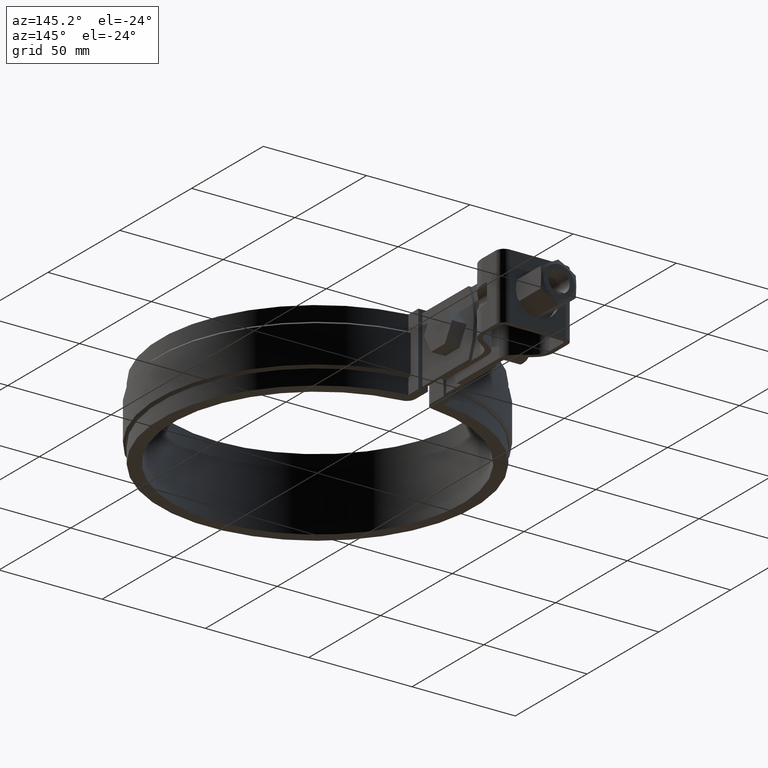
[diagram: clean part render]
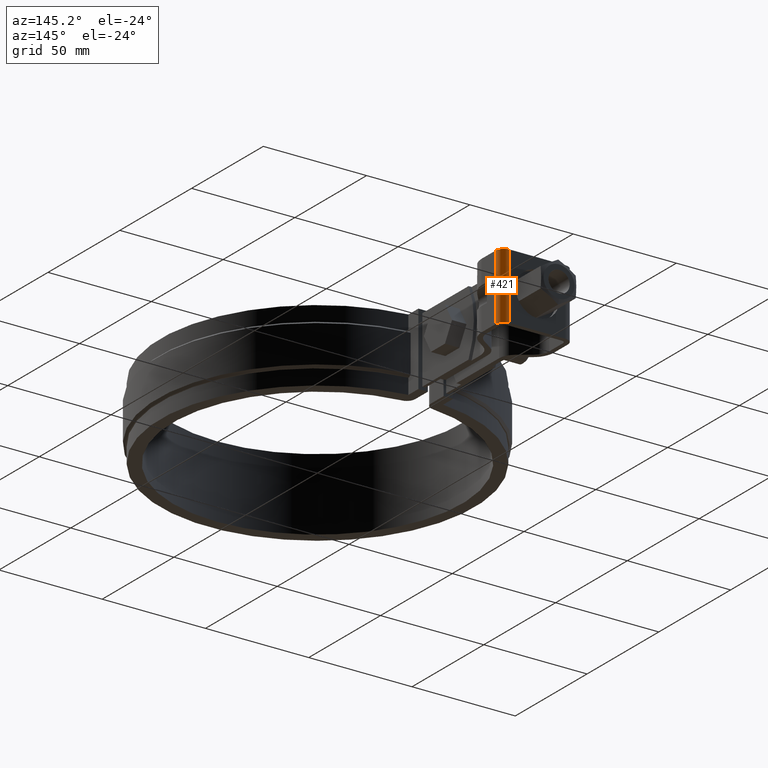
[diagram: same view with one face highlighted and labeled with its STEP entity id]
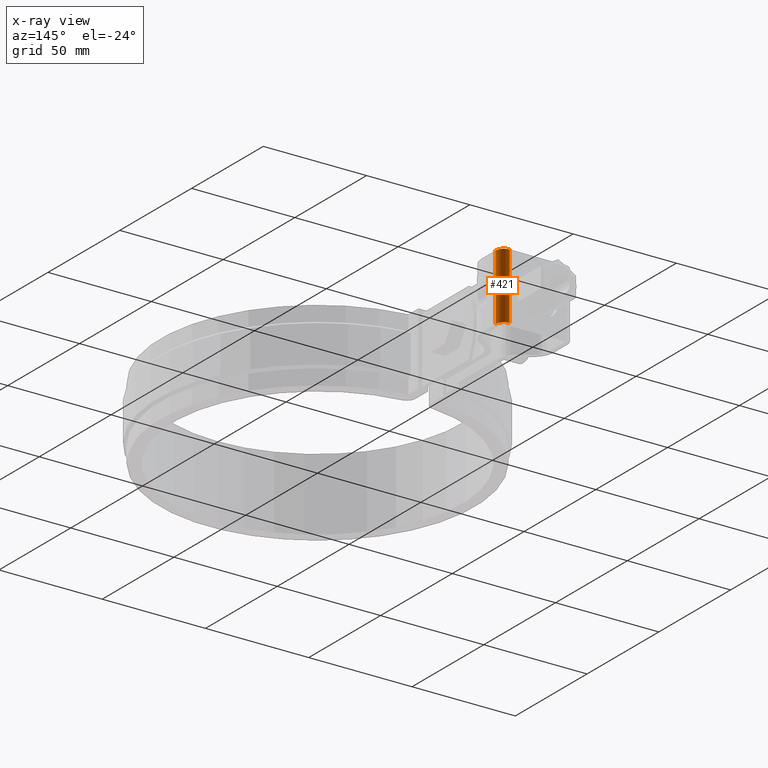
[diagram: x-ray of the same camera — body ghosted, the highlighted face saturated]
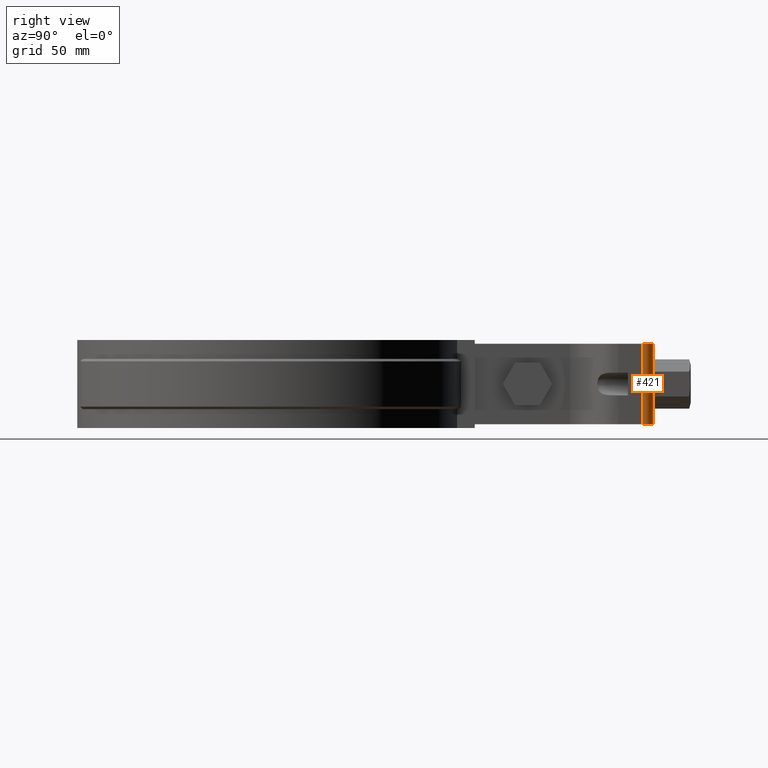
[diagram: same view with one face highlighted and labeled with its STEP entity id]
A machine part, auxiliary view. The second image highlights one B-rep face of the part: STEP entity #421.
The next image is the same camera in x-ray: the body ghosted, the highlighted face saturated — about 0% of this face is hidden behind the body in this view.
A second angle (right view) of the same face is appended — the face is thin or edge-on in the first view.
In plain terms, the highlighted cylindrical surface (edge-blend (fillet) strip) has radius 4 mm, axis along (0, 0, 1).
Its self-contained STEP definition (entity closure, byte-faithful):
#421 = ADVANCED_FACE( '', ( #716 ), #717, .T. );
#716 = FACE_OUTER_BOUND( '', #1843, .T. );
#717 = CYLINDRICAL_SURFACE( '', #1844, 4.00000000000000 );
#1843 = EDGE_LOOP( '', ( #4455, #4456, #4457, #4458 ) );
#1844 = AXIS2_PLACEMENT_3D( '', #4459, #4460, #4461 );
#4455 = ORIENTED_EDGE( '', *, *, #5331, .F. );
#4456 = ORIENTED_EDGE( '', *, *, #5332, .F. );
#4457 = ORIENTED_EDGE( '', *, *, #5240, .T. );
#4458 = ORIENTED_EDGE( '', *, *, #5333, .T. );
#4459 = CARTESIAN_POINT( '', ( 13.5000000000000, 149.297141712794, -32.0000000000000 ) );
#4460 = DIRECTION( '', ( 0.000000000000000, 0.000000000000000, 1.00000000000000 ) );
#4461 = DIRECTION( '', ( 0.000000000000000, 1.00000000000000, 0.000000000000000 ) );
#5240 = EDGE_CURVE( '', #5923, #5921, #5924, .T. );
#5331 = EDGE_CURVE( '', #6078, #6079, #6080, .T. );
#5332 = EDGE_CURVE( '', #5923, #6078, #6081, .T. );
#5333 = EDGE_CURVE( '', #5921, #6079, #6082, .T. );
#5921 = VERTEX_POINT( '', #8682 );
#5923 = VERTEX_POINT( '', #8685 );
#5924 = CIRCLE( '', #8686, 4.00000000000000 );
#6078 = VERTEX_POINT( '', #9000 );
#6079 = VERTEX_POINT( '', #9001 );
#6080 = CIRCLE( '', #9002, 4.00000000000000 );
#6081 = LINE( '', #9003, #9004 );
#6082 = LINE( '', #9005, #9006 );
#8682 = CARTESIAN_POINT( '', ( 13.5000000000000, 153.297141712794, -32.0000000000000 ) );
#8685 = CARTESIAN_POINT( '', ( 17.5000000000000, 149.297141712794, -32.0000000000000 ) );
#8686 = AXIS2_PLACEMENT_3D( '', #9711, #9712, #9713 );
#9000 = CARTESIAN_POINT( '', ( 17.5000000000000, 149.297141712794, -8.67361737988403E-016 ) );
#9001 = CARTESIAN_POINT( '', ( 13.5000000000000, 153.297141712794, -8.67361737988403E-016 ) );
#9002 = AXIS2_PLACEMENT_3D( '', #9858, #9859, #9860 );
#9003 = CARTESIAN_POINT( '', ( 17.5000000000000, 149.297141712794, -32.0000000000000 ) );
#9004 = VECTOR( '', #9861, 1000.00000000000 );
#9005 = CARTESIAN_POINT( '', ( 13.5000000000000, 153.297141712794, -32.0000000000000 ) );
#9006 = VECTOR( '', #9862, 1000.00000000000 );
#9711 = CARTESIAN_POINT( '', ( 13.5000000000000, 149.297141712794, -32.0000000000000 ) );
#9712 = DIRECTION( '', ( 0.000000000000000, 0.000000000000000, 1.00000000000000 ) );
#9713 = DIRECTION( '', ( 1.00000000000000, 0.000000000000000, 0.000000000000000 ) );
#9858 = CARTESIAN_POINT( '', ( 13.5000000000000, 149.297141712794, 0.000000000000000 ) );
#9859 = DIRECTION( '', ( 0.000000000000000, 0.000000000000000, 1.00000000000000 ) );
#9860 = DIRECTION( '', ( 1.00000000000000, 0.000000000000000, 0.000000000000000 ) );
#9861 = DIRECTION( '', ( 0.000000000000000, 0.000000000000000, 1.00000000000000 ) );
#9862 = DIRECTION( '', ( 0.000000000000000, 0.000000000000000, 1.00000000000000 ) );